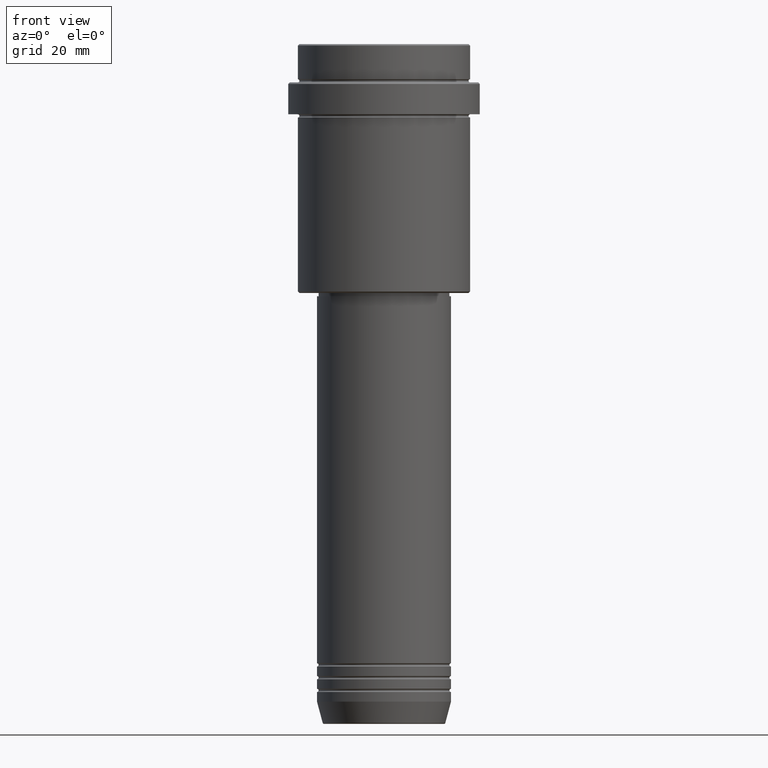
[diagram: clean part render]
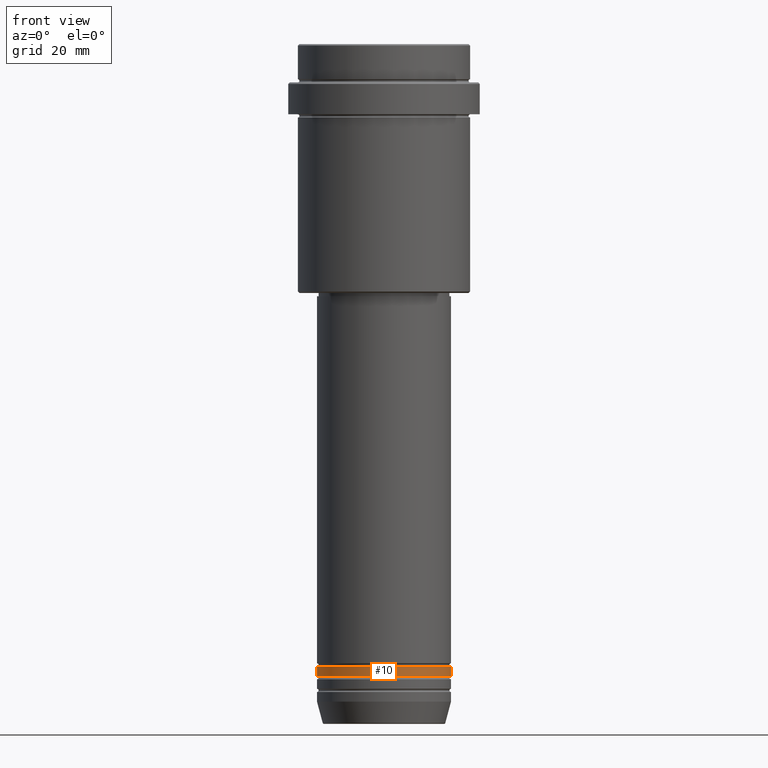
[diagram: same view with one face highlighted and labeled with its STEP entity id]
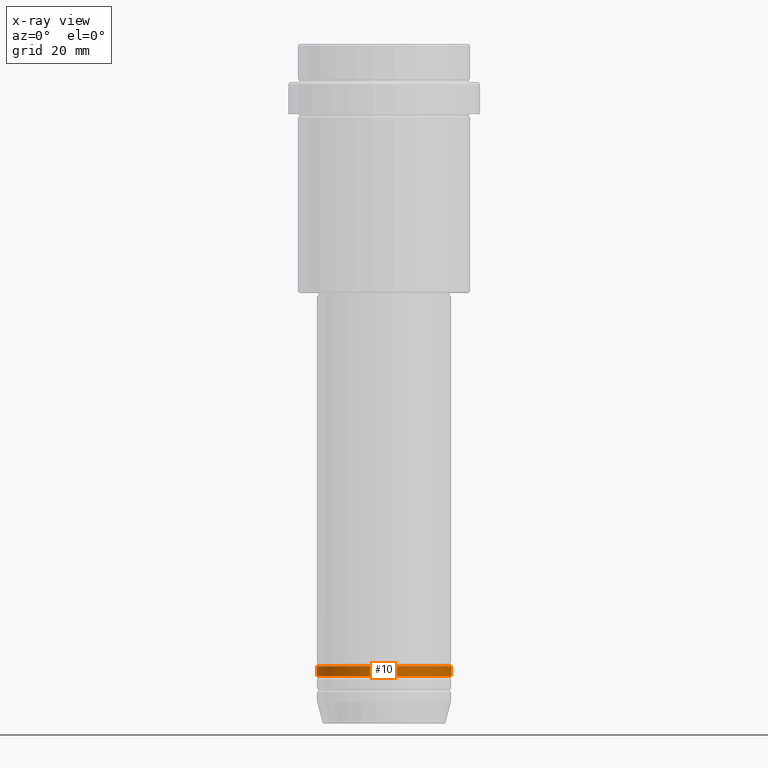
[diagram: x-ray of the same camera — body ghosted, the highlighted face saturated]
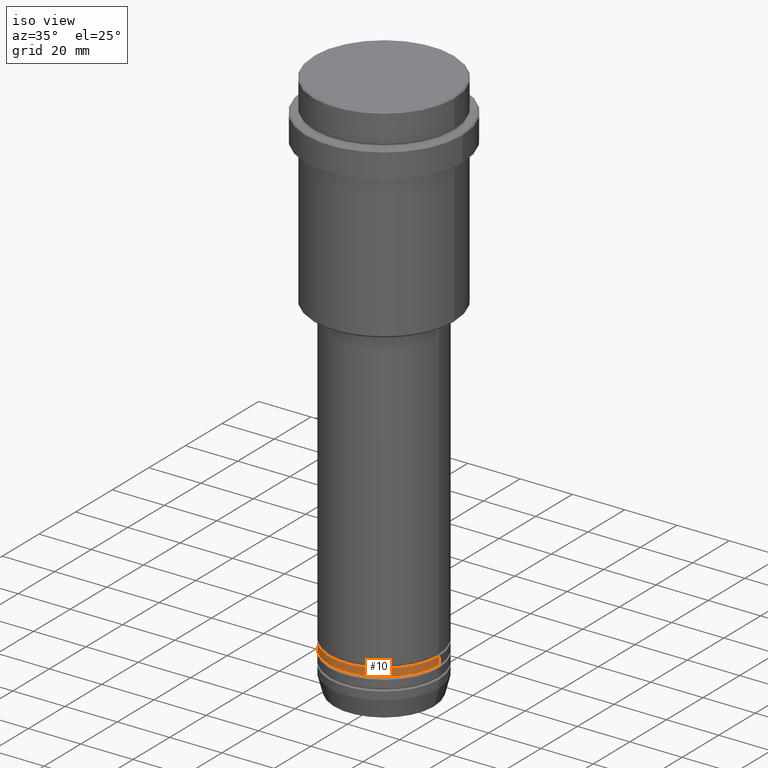
[diagram: same view with one face highlighted and labeled with its STEP entity id]
A machine part, front view. The second image highlights one B-rep face of the part: STEP entity #10.
The next image is the same camera in x-ray: the body ghosted, the highlighted face saturated — about 0% of this face is hidden behind the body in this view.
A second angle (iso view) of the same face is appended — the face is thin or edge-on in the first view.
In plain terms, the highlighted cylindrical surface (partial cylindrical patch) has radius 21 mm, axis along (-0, -0, 1).
Its self-contained STEP definition (entity closure, byte-faithful):
#10 = ADVANCED_FACE ( 'NONE', ( #179 ), #849, .T. ) ;
#58 = CIRCLE ( 'NONE', #1216, 21.00000000000000000 ) ;
#93 = CARTESIAN_POINT ( 'NONE',  ( -21.00000000000000000, 2.571758278209441661E-15, -197.9999999999998863 ) ) ;
#109 = CARTESIAN_POINT ( 'NONE',  ( 21.00000000000000000, 0.000000000000000000, -197.9999999999998863 ) ) ;
#113 = VERTEX_POINT ( 'NONE', #1046 ) ;
#120 = DIRECTION ( 'NONE',  ( -0.000000000000000000, -0.000000000000000000, 1.000000000000000000 ) ) ;
#179 = FACE_OUTER_BOUND ( 'NONE', #531, .T. ) ;
#214 = CARTESIAN_POINT ( 'NONE',  ( 21.00000000000000000, 0.000000000000000000, -194.9999999999998863 ) ) ;
#335 = EDGE_CURVE ( 'NONE', #756, #113, #817, .T. ) ;
#399 = DIRECTION ( 'NONE',  ( -0.000000000000000000, -0.000000000000000000, 1.000000000000000000 ) ) ;
#450 = VECTOR ( 'NONE', #120, 1000.000000000000000 ) ;
#531 = EDGE_LOOP ( 'NONE', ( #1241, #772, #1411, #1048 ) ) ;
#555 = CARTESIAN_POINT ( 'NONE',  ( 0.000000000000000000, 0.000000000000000000, -197.9999999999998863 ) ) ;
#587 = VERTEX_POINT ( 'NONE', #214 ) ;
#606 = DIRECTION ( 'NONE',  ( -0.000000000000000000, -0.000000000000000000, 1.000000000000000000 ) ) ;
#697 = VECTOR ( 'NONE', #606, 1000.000000000000000 ) ;
#752 = CARTESIAN_POINT ( 'NONE',  ( 0.000000000000000000, 0.000000000000000000, -194.9999999999998863 ) ) ;
#756 = VERTEX_POINT ( 'NONE', #93 ) ;
#772 = ORIENTED_EDGE ( 'NONE', *, *, #1013, .T. ) ;
#817 = LINE ( 'NONE', #929, #697 ) ;
#849 = CYLINDRICAL_SURFACE ( 'NONE', #1200, 21.00000000000000000 ) ;
#924 = CIRCLE ( 'NONE', #1148, 21.00000000000000000 ) ;
#929 = CARTESIAN_POINT ( 'NONE',  ( -21.00000000000000000, 2.571758278209441661E-15, 0.000000000000000000 ) ) ;
#938 = DIRECTION ( 'NONE',  ( 1.000000000000000000, 0.000000000000000000, 0.000000000000000000 ) ) ;
#973 = EDGE_CURVE ( 'NONE', #985, #587, #1090, .T. ) ;
#982 = DIRECTION ( 'NONE',  ( -0.000000000000000000, -0.000000000000000000, 1.000000000000000000 ) ) ;
#985 = VERTEX_POINT ( 'NONE', #109 ) ;
#997 = CARTESIAN_POINT ( 'NONE',  ( 21.00000000000000000, 0.000000000000000000, 0.000000000000000000 ) ) ;
#1013 = EDGE_CURVE ( 'NONE', #756, #985, #924, .T. ) ;
#1046 = CARTESIAN_POINT ( 'NONE',  ( -21.00000000000000000, 2.571758278209441661E-15, -194.9999999999998863 ) ) ;
#1048 = ORIENTED_EDGE ( 'NONE', *, *, #1231, .F. ) ;
#1090 = LINE ( 'NONE', #997, #450 ) ;
#1148 = AXIS2_PLACEMENT_3D ( 'NONE', #555, #982, #1417 ) ;
#1200 = AXIS2_PLACEMENT_3D ( 'NONE', #1262, #399, #938 ) ;
#1216 = AXIS2_PLACEMENT_3D ( 'NONE', #752, #1400, #1281 ) ;
#1231 = EDGE_CURVE ( 'NONE', #113, #587, #58, .T. ) ;
#1241 = ORIENTED_EDGE ( 'NONE', *, *, #335, .F. ) ;
#1262 = CARTESIAN_POINT ( 'NONE',  ( 0.000000000000000000, 0.000000000000000000, 0.000000000000000000 ) ) ;
#1281 = DIRECTION ( 'NONE',  ( 1.000000000000000000, 0.000000000000000000, 0.000000000000000000 ) ) ;
#1400 = DIRECTION ( 'NONE',  ( -0.000000000000000000, -0.000000000000000000, 1.000000000000000000 ) ) ;
#1411 = ORIENTED_EDGE ( 'NONE', *, *, #973, .T. ) ;
#1417 = DIRECTION ( 'NONE',  ( 1.000000000000000000, 0.000000000000000000, 0.000000000000000000 ) ) ;